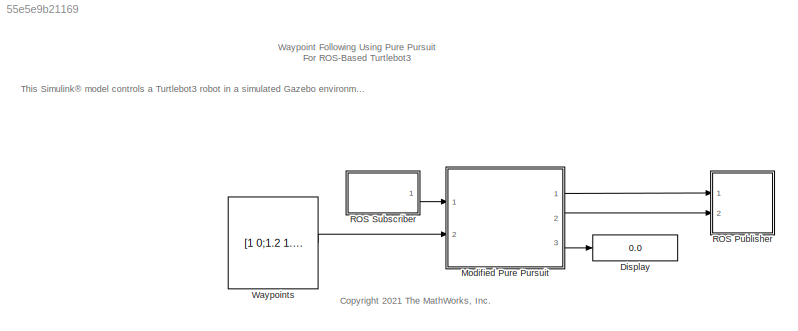
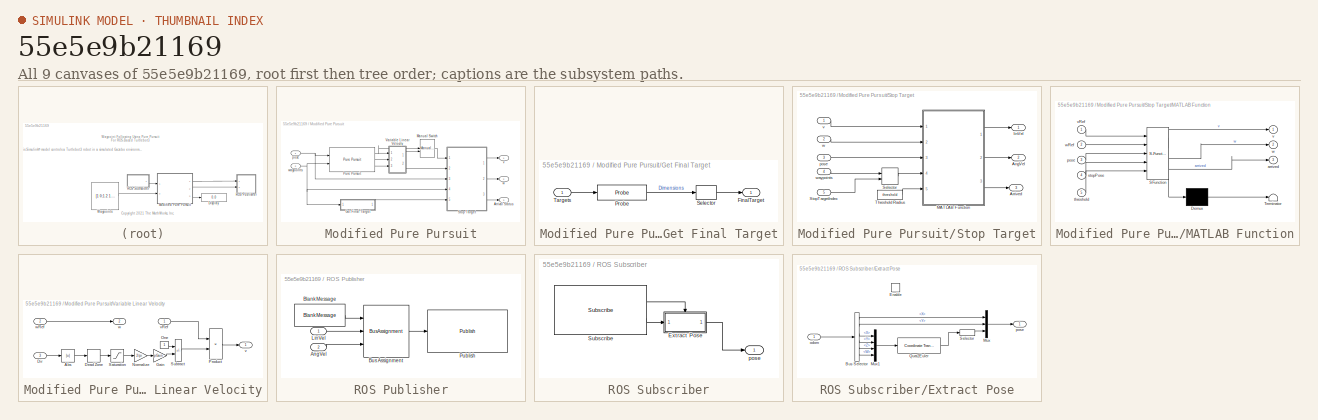
[diagram: thumbnail index - all 9 canvases of the model, root first then tree order]
MODEL slx_55e5e9b21169
KIND model
CONFIG AbsTol = auto
CONFIG EnableMultiTasking = off
CONFIG FixedStep = auto
CONFIG MaxStep = auto
CONFIG MinStep = auto
CONFIG RelTol = 1e-3
CONFIG SampleTimeConstraint = Unconstrained
CONFIG SolverName = FixedStepAuto
CONFIG StartTime = 0.0
CONFIG StopFcn = figHandles = findobj('Type', 'figure');\nfor i = 1: length(figHandles)\n    if contains(figHandles(i).Name, 'Sign Following Robot', 'IgnoreCase', true)\n        close(figHandles(i));\n    end\nend\n\nclear figHandles;
CONFIG StopTime = inf
WORKSPACE source: mxarray member
WORKSPACE SL_ROS_VariableLengthArrays_MaxSizes: object (value not decoded)
BLOCK [Display] Display
  Decimation = 1
  Ports = [1]
BLOCK [SubSystem] Modified Pure Pursuit
  Ports = [2, 3]
  RequestExecContextInheritance = off
BLOCK [Outport] Modified Pure Pursuit/Arrival Status
  Port = 3
  VectorParamsAs1DForOutWhenUnconnected = off
BLOCK [SubSystem] Modified Pure Pursuit/Get Final Target
  Ports = [1, 1]
  RequestExecContextInheritance = off
BLOCK [Outport] Modified Pure Pursuit/Get Final Target/FinalTarget
BLOCK [Probe] Modified Pure Pursuit/Get Final Target/Probe
  Ports = [1, 1]
  ProbeComplexSignal = off
  ProbeSampleTime = off
  ProbeSignalDimensions = on
  ProbeWidth = off
BLOCK [Selector] Modified Pure Pursuit/Get Final Target/Selector
  IndexOptions = Index vector (dialog)
  Indices = 1
  InputPortWidth = 2
  OutputSizes = 1
  Ports = [1, 1]
BLOCK [Inport] Modified Pure Pursuit/Get Final Target/Targets
BLOCK [ManualSwitch] Modified Pure Pursuit/Manual Switch
  CurrentSetting = 0
  NameLocation = top
BLOCK [Reference] Modified Pure Pursuit/Pure Pursuit  REF=robotalgslib/Pure Pursuit
  Ports = [2, 3]
  SourceBlock = robotalgslib/Pure Pursuit
  SourceProductBaseCode = NV,RO
  SourceType = nav.slalgs.internal.PurePursuit
BLOCK [SubSystem] Modified Pure Pursuit/Stop Target
  Ports = [5, 3]
  RequestExecContextInheritance = off
BLOCK [Outport] Modified Pure Pursuit/Stop Target/AngVel
  Port = 2
BLOCK [Outport] Modified Pure Pursuit/Stop Target/Arrived
  Port = 3
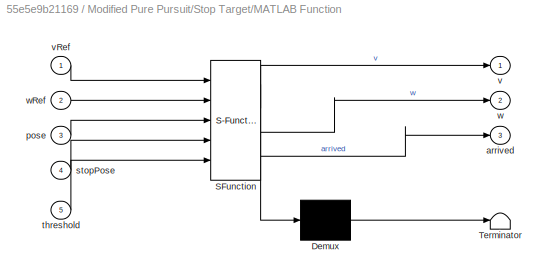
BLOCK [SubSystem] Modified Pure Pursuit/Stop Target/MATLAB Function
  ErrorFcn = Stateflow.Translate.translate
  PermitHierarchicalResolution = ExplicitOnly
  Ports = [5, 3]
  RequestExecContextInheritance = off
  SFBlockType = MATLAB Function
  TreatAsAtomicUnit = on
BLOCK [Demux] Modified Pure Pursuit/Stop Target/MATLAB Function/ Demux 
  Outputs = 1
  Ports = [1, 1]
BLOCK [S-Function] Modified Pure Pursuit/Stop Target/MATLAB Function/ SFunction 
  EnableBusSupport = on
  FunctionName = sf_sfun
  PortCounts = [5 4]
  Ports = [5, 4]
  SFcnIsStateOwnerBlock = off
  SFunctionDeploymentMode = off
  Tag = Stateflow S-Function 2
BLOCK [Terminator] Modified Pure Pursuit/Stop Target/MATLAB Function/ Terminator 
BLOCK [Outport] Modified Pure Pursuit/Stop Target/MATLAB Function/arrived
  Port = 3
BLOCK [Inport] Modified Pure Pursuit/Stop Target/MATLAB Function/pose
  Port = 3
BLOCK [Inport] Modified Pure Pursuit/Stop Target/MATLAB Function/stopPose
  Port = 4
BLOCK [Inport] Modified Pure Pursuit/Stop Target/MATLAB Function/threshold
  Port = 5
BLOCK [Outport] Modified Pure Pursuit/Stop Target/MATLAB Function/v
BLOCK [Inport] Modified Pure Pursuit/Stop Target/MATLAB Function/vRef
BLOCK [Outport] Modified Pure Pursuit/Stop Target/MATLAB Function/w
  Port = 2
BLOCK [Inport] Modified Pure Pursuit/Stop Target/MATLAB Function/wRef
  Port = 2
BLOCK [Selector] Modified Pure Pursuit/Stop Target/Selector
  IndexOptions = Index vector (port),Index vector (dialog)
  Indices = [1 3],[1 2]
  InputPortWidth = 3
  NumberOfDimensions = 2
  OutputSizes = 1,1
  Ports = [2, 1]
BLOCK [Inport] Modified Pure Pursuit/Stop Target/StopTargetIndex
  Port = 5
BLOCK [Constant] Modified Pure Pursuit/Stop Target/Threshold Radius
  Value = threshold
BLOCK [Outport] Modified Pure Pursuit/Stop Target/linVel
BLOCK [Inport] Modified Pure Pursuit/Stop Target/pose
  Port = 3
BLOCK [Inport] Modified Pure Pursuit/Stop Target/v
BLOCK [Inport] Modified Pure Pursuit/Stop Target/w
  Port = 2
BLOCK [Inport] Modified Pure Pursuit/Stop Target/waypoints
  Port = 4
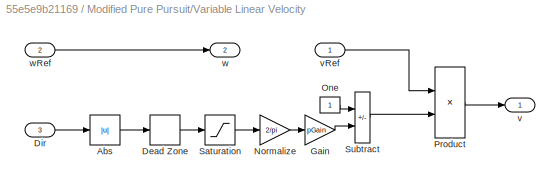
BLOCK [SubSystem] Modified Pure Pursuit/Variable Linear Velocity
  Ports = [3, 2]
  RequestExecContextInheritance = off
BLOCK [Abs] Modified Pure Pursuit/Variable Linear Velocity/Abs
  SaturateOnIntegerOverflow = off
BLOCK [DeadZone] Modified Pure Pursuit/Variable Linear Velocity/Dead Zone
  LowerValue = -deadZone
  UpperValue = deadZone
BLOCK [Inport] Modified Pure Pursuit/Variable Linear Velocity/Dir
  Port = 3
BLOCK [Gain] Modified Pure Pursuit/Variable Linear Velocity/Gain
  Gain = pGain
BLOCK [Gain] Modified Pure Pursuit/Variable Linear Velocity/Normalize
  Gain = 2/pi
BLOCK [Constant] Modified Pure Pursuit/Variable Linear Velocity/One
  OutDataTypeStr = Inherit: Inherit via back propagation
BLOCK [Product] Modified Pure Pursuit/Variable Linear Velocity/Product
  Ports = [2, 1]
BLOCK [Saturate] Modified Pure Pursuit/Variable Linear Velocity/Saturation
  LowerLimit = 0
  UpperLimit = pi/2
BLOCK [Sum] Modified Pure Pursuit/Variable Linear Velocity/Subtract
  IconShape = rectangular
  Inputs = +-
  Ports = [2, 1]
BLOCK [Outport] Modified Pure Pursuit/Variable Linear Velocity/v
BLOCK [Inport] Modified Pure Pursuit/Variable Linear Velocity/vRef
  NameLocation = top
BLOCK [Outport] Modified Pure Pursuit/Variable Linear Velocity/w
  Port = 2
BLOCK [Inport] Modified Pure Pursuit/Variable Linear Velocity/wRef
  Port = 2
BLOCK [Inport] Modified Pure Pursuit/pose
BLOCK [Outport] Modified Pure Pursuit/v
  VectorParamsAs1DForOutWhenUnconnected = off
BLOCK [Outport] Modified Pure Pursuit/w
  Port = 2
  VectorParamsAs1DForOutWhenUnconnected = off
BLOCK [Inport] Modified Pure Pursuit/waypoints
  Port = 2
BLOCK [SubSystem] ROS Publisher
  Ports = [2]
  RequestExecContextInheritance = off
BLOCK [Inport] ROS Publisher/AngVel
  Port = 2
BLOCK [Reference] ROS Publisher/Blank Message  REF=robotlib/Blank Message
  NameLocation = top
  Ports = [0, 1]
  SourceBlock = robotlib/Blank Message
  SourceProductBaseCode = RR
  SourceType = ROS Blank Message
BLOCK [BusAssignment] ROS Publisher/Bus Assignment
  AssignedSignals = Linear.X,Angular.Z
  Ports = [3, 1]
BLOCK [Inport] ROS Publisher/LinVel
BLOCK [Reference] ROS Publisher/Publish  REF=robotlib/Publish
  Ports = [1]
  SourceBlock = robotlib/Publish
  SourceProductBaseCode = RR
  SourceType = ROS Publish
BLOCK [SubSystem] ROS Subscriber
  Ports = [0, 1]
  RequestExecContextInheritance = off
BLOCK [SubSystem] ROS Subscriber/Extract Pose
  Ports = [1, 1, 1]
  RequestExecContextInheritance = off
BLOCK [BusSelector] ROS Subscriber/Extract Pose/Bus Selector
  OutputSignals = Pose.Pose.Position.X,Pose.Pose.Position.Y,Pose.Pose.Orientation.X,Pose.Pose.Orientation.Y,Pose.Pose.Orientation.Z,Pose.Pose.Orientation.W
  Ports = [1, 6]
BLOCK [EnablePort] ROS Subscriber/Extract Pose/Enable
  Ports = []
BLOCK [Mux] ROS Subscriber/Extract Pose/Mux
  DisplayOption = bar
  Inputs = 3
  Ports = [3, 1]
BLOCK [Mux] ROS Subscriber/Extract Pose/Mux1
  DisplayOption = bar
  Ports = [4, 1]
BLOCK [Reference] ROS Subscriber/Extract Pose/Quat2Euler  REF=robotcorelib/Coordinate Transformation Conversion
  Ports = [1, 1]
  SourceBlock = robotcorelib/Coordinate Transformation Conversion
  SourceProductBaseCode = NV,RO,RR,UV
  SourceType = robotics.slcore.internal.block.CoordinateTransformationConversion
BLOCK [Selector] ROS Subscriber/Extract Pose/Selector
  IndexOptions = Index vector (dialog)
  Indices = 3
  InputPortWidth = 3
  OutputSizes = 1
  Ports = [1, 1]
BLOCK [Inport] ROS Subscriber/Extract Pose/odom
BLOCK [Outport] ROS Subscriber/Extract Pose/pose
BLOCK [Reference] ROS Subscriber/Subscribe  REF=robotlib/Subscribe
  Ports = [0, 2]
  SourceBlock = robotlib/Subscribe
  SourceProductBaseCode = RR
  SourceType = ROS Subscribe
BLOCK [Outport] ROS Subscriber/pose
BLOCK [Constant] Waypoints
  Value = [1 0;1.2 1.3;2.5 1.3;3 2.8;4 4]
ANNOTATION (root): Waypoint Following Using Pure Pursuit For ROS-Based Turtlebot3
ANNOTATION (root): <copyright redacted>
ANNOTATION (root): This Simulink® model controls a Turtlebot3 robot in a simulated Gazebo environment using ROS messages. The algorithm performs path following given a set of waypoints using a modified version of a pure pursuit controller that accounts for variability in linear velocity and arrival status. Visit this documentation page for more information on how to interact with ROS systems using Simulink.
LINE Modified Pure Pursuit/Get Final Target/Probe:1 -> Modified Pure Pursuit/Get Final Target/Selector:1
LINE Modified Pure Pursuit/Get Final Target/Selector:1 -> Modified Pure Pursuit/Get Final Target/FinalTarget:1
LINE Modified Pure Pursuit/Get Final Target/Targets:1 -> Modified Pure Pursuit/Get Final Target/Probe:1
LINE Modified Pure Pursuit/Get Final Target:1 -> Modified Pure Pursuit/Stop Target:5
LINE Modified Pure Pursuit/Manual Switch:1 -> Modified Pure Pursuit/Stop Target:1
NET Modified Pure Pursuit/Pure Pursuit:1 -> Modified Pure Pursuit/Manual Switch:1, Modified Pure Pursuit/Variable Linear Velocity:1
LINE Modified Pure Pursuit/Pure Pursuit:2 -> Modified Pure Pursuit/Variable Linear Velocity:2
LINE Modified Pure Pursuit/Pure Pursuit:3 -> Modified Pure Pursuit/Variable Linear Velocity:3
LINE Modified Pure Pursuit/Stop Target/MATLAB Function:1 -> Modified Pure Pursuit/Stop Target/linVel:1
LINE Modified Pure Pursuit/Stop Target/MATLAB Function:2 -> Modified Pure Pursuit/Stop Target/AngVel:1
LINE Modified Pure Pursuit/Stop Target/MATLAB Function:3 -> Modified Pure Pursuit/Stop Target/Arrived:1
LINE Modified Pure Pursuit/Stop Target/Selector:1 -> Modified Pure Pursuit/Stop Target/MATLAB Function:4
LINE Modified Pure Pursuit/Stop Target/StopTargetIndex:1 -> Modified Pure Pursuit/Stop Target/Selector:2
LINE Modified Pure Pursuit/Stop Target/Threshold Radius:1 -> Modified Pure Pursuit/Stop Target/MATLAB Function:5
LINE Modified Pure Pursuit/Stop Target/pose:1 -> Modified Pure Pursuit/Stop Target/MATLAB Function:3
LINE Modified Pure Pursuit/Stop Target/v:1 -> Modified Pure Pursuit/Stop Target/MATLAB Function:1
LINE Modified Pure Pursuit/Stop Target/w:1 -> Modified Pure Pursuit/Stop Target/MATLAB Function:2
LINE Modified Pure Pursuit/Stop Target/waypoints:1 -> Modified Pure Pursuit/Stop Target/Selector:1
LINE Modified Pure Pursuit/Stop Target:1 -> Modified Pure Pursuit/v:1
LINE Modified Pure Pursuit/Stop Target:2 -> Modified Pure Pursuit/w:1
LINE Modified Pure Pursuit/Stop Target:3 -> Modified Pure Pursuit/Arrival Status:1
LINE Modified Pure Pursuit/Variable Linear Velocity/Abs:1 -> Modified Pure Pursuit/Variable Linear Velocity/Dead Zone:1
LINE Modified Pure Pursuit/Variable Linear Velocity/Dead Zone:1 -> Modified Pure Pursuit/Variable Linear Velocity/Saturation:1
LINE Modified Pure Pursuit/Variable Linear Velocity/Dir:1 -> Modified Pure Pursuit/Variable Linear Velocity/Abs:1
LINE Modified Pure Pursuit/Variable Linear Velocity/Gain:1 -> Modified Pure Pursuit/Variable Linear Velocity/Subtract:2
LINE Modified Pure Pursuit/Variable Linear Velocity/Normalize:1 -> Modified Pure Pursuit/Variable Linear Velocity/Gain:1
LINE Modified Pure Pursuit/Variable Linear Velocity/One:1 -> Modified Pure Pursuit/Variable Linear Velocity/Subtract:1
LINE Modified Pure Pursuit/Variable Linear Velocity/Product:1 -> Modified Pure Pursuit/Variable Linear Velocity/v:1
LINE Modified Pure Pursuit/Variable Linear Velocity/Saturation:1 -> Modified Pure Pursuit/Variable Linear Velocity/Normalize:1
LINE Modified Pure Pursuit/Variable Linear Velocity/Subtract:1 -> Modified Pure Pursuit/Variable Linear Velocity/Product:2
LINE Modified Pure Pursuit/Variable Linear Velocity/vRef:1 -> Modified Pure Pursuit/Variable Linear Velocity/Product:1
LINE Modified Pure Pursuit/Variable Linear Velocity/wRef:1 -> Modified Pure Pursuit/Variable Linear Velocity/w:1
LINE Modified Pure Pursuit/Variable Linear Velocity:1 -> Modified Pure Pursuit/Manual Switch:2
LINE Modified Pure Pursuit/Variable Linear Velocity:2 -> Modified Pure Pursuit/Stop Target:2
NET Modified Pure Pursuit/pose:1 -> Modified Pure Pursuit/Pure Pursuit:1, Modified Pure Pursuit/Stop Target:3
NET Modified Pure Pursuit/waypoints:1 -> Modified Pure Pursuit/Get Final Target:1, Modified Pure Pursuit/Pure Pursuit:2, Modified Pure Pursuit/Stop Target:4
LINE Modified Pure Pursuit:1 -> ROS Publisher:1
LINE Modified Pure Pursuit:2 -> ROS Publisher:2
LINE Modified Pure Pursuit:3 -> Display:1
LINE ROS Publisher/AngVel:1 -> ROS Publisher/Bus Assignment:3
LINE ROS Publisher/Blank Message:1 -> ROS Publisher/Bus Assignment:1
LINE ROS Publisher/Bus Assignment:1 -> ROS Publisher/Publish:1
LINE ROS Publisher/LinVel:1 -> ROS Publisher/Bus Assignment:2
LINE ROS Subscriber/Extract Pose/Bus Selector:1 -> ROS Subscriber/Extract Pose/Mux:1
LINE ROS Subscriber/Extract Pose/Bus Selector:2 -> ROS Subscriber/Extract Pose/Mux:2
LINE ROS Subscriber/Extract Pose/Bus Selector:3 -> ROS Subscriber/Extract Pose/Mux1:1
LINE ROS Subscriber/Extract Pose/Bus Selector:4 -> ROS Subscriber/Extract Pose/Mux1:2
LINE ROS Subscriber/Extract Pose/Bus Selector:5 -> ROS Subscriber/Extract Pose/Mux1:3
LINE ROS Subscriber/Extract Pose/Bus Selector:6 -> ROS Subscriber/Extract Pose/Mux1:4
LINE ROS Subscriber/Extract Pose/Mux1:1 -> ROS Subscriber/Extract Pose/Quat2Euler:1
LINE ROS Subscriber/Extract Pose/Mux:1 -> ROS Subscriber/Extract Pose/pose:1
LINE ROS Subscriber/Extract Pose/Quat2Euler:1 -> ROS Subscriber/Extract Pose/Selector:1
LINE ROS Subscriber/Extract Pose/Selector:1 -> ROS Subscriber/Extract Pose/Mux:3
LINE ROS Subscriber/Extract Pose/odom:1 -> ROS Subscriber/Extract Pose/Bus Selector:1
LINE ROS Subscriber/Extract Pose:1 -> ROS Subscriber/pose:1
LINE ROS Subscriber/Subscribe:1 -> ROS Subscriber/Extract Pose:enable
LINE ROS Subscriber/Subscribe:2 -> ROS Subscriber/Extract Pose:1
LINE ROS Subscriber:1 -> Modified Pure Pursuit:1
LINE Waypoints:1 -> Modified Pure Pursuit:2
note: NET lines group one-source signal fan-out (src -> all destinations, sorted); 1:1 wires keep LINE
CHART Modified Pure Pursuit/Stop Target/MATLAB Function states=1 transitions=1
  STATE_LABEL 'eML_blk_kernel()'
  STATE_LABEL 'SCRIPT:\nfunction [v, w, arrived] = arrivalThreshold(vRef, wRef, pose, stopPose, threshold)\n\neucDist = sqrt((stopPose(1)-pose(1))^2 + (stopPose(2)-pose(2))^2);\n\nif eucDist > threshold\n    v = vRef;\n    w = wRef;\n    arrived = 0;\nelse\n    v = 0;\n    w = 0;\n    arrived = 1;\nend'
CHART  states=0 transitions=0
